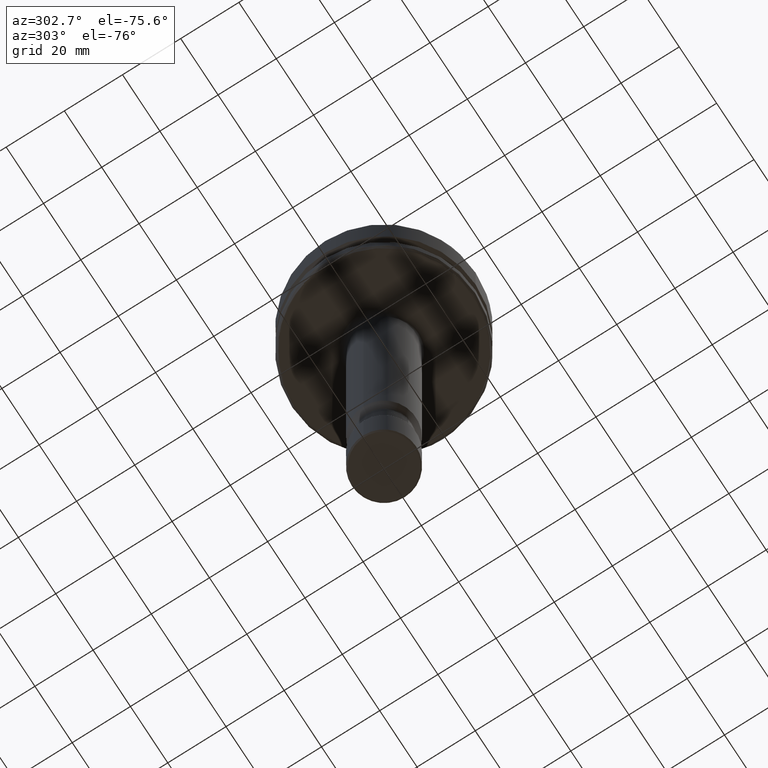
[diagram: clean part render]
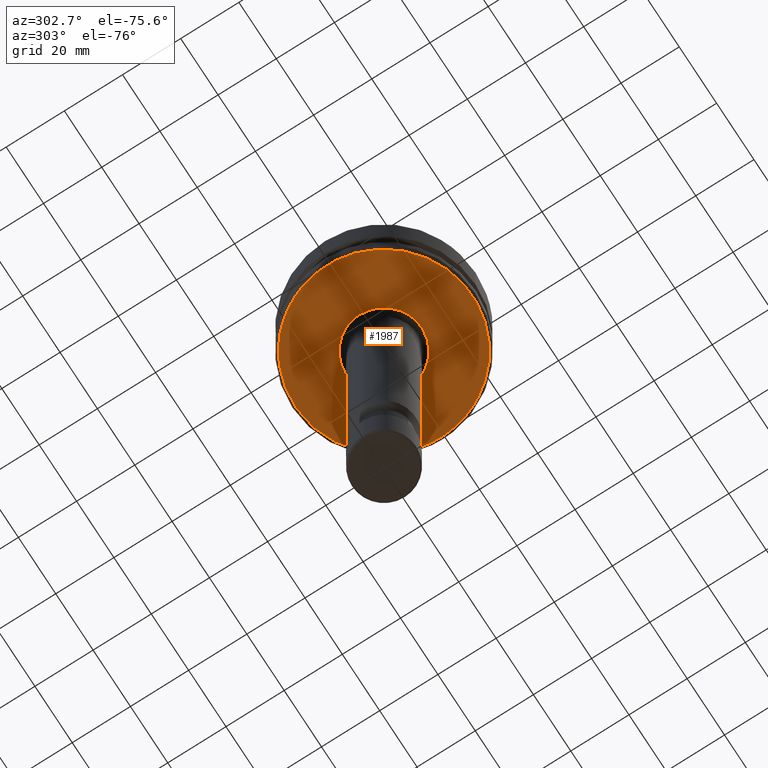
[diagram: same view with one face highlighted and labeled with its STEP entity id]
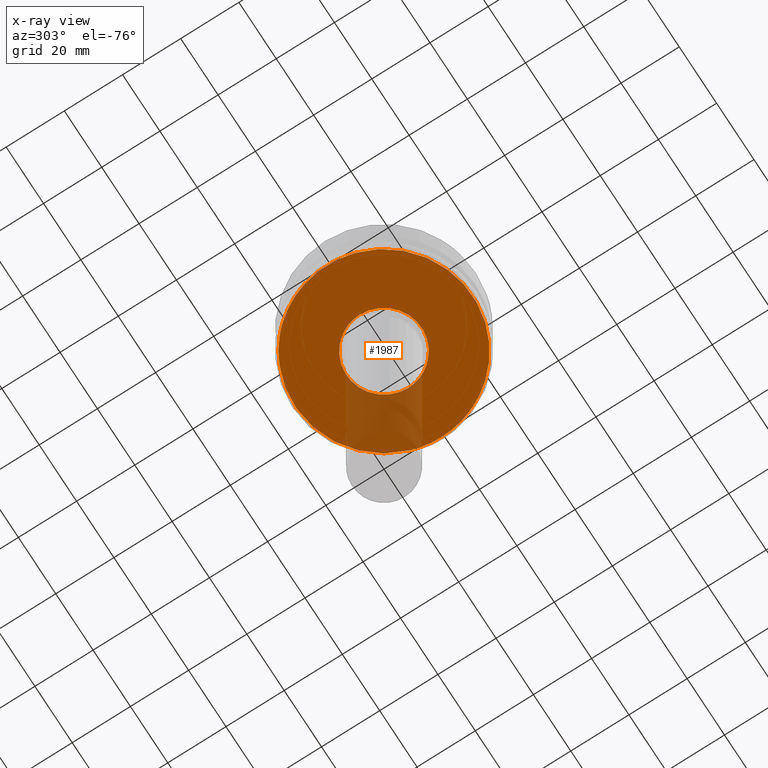
[diagram: x-ray of the same camera — body ghosted, the highlighted face saturated]
A machine part, auxiliary view. The second image highlights one B-rep face of the part: STEP entity #1987.
The next image is the same camera in x-ray: the body ghosted, the highlighted face saturated — about 17% of this face is hidden behind the body in this view.
In plain terms, the highlighted planar face has unit normal (0, 0, 1).
Its self-contained STEP definition (entity closure, byte-faithful):
#3 = CARTESIAN_POINT ( 'NONE',  ( -6.665848444535276600, 11.16589709546137700, -26.00000000000000700 ) ) ;
#4 = CARTESIAN_POINT ( 'NONE',  ( 8.224492792420258900, -10.06893843862769700, -25.99999999999999300 ) ) ;
#11 = CARTESIAN_POINT ( 'NONE',  ( -8.697391775621932600, -9.662360912527706300, -26.00000000000000000 ) ) ;
#12 = CARTESIAN_POINT ( 'NONE',  ( 12.99999999089697900, 0.0000000000000000000, -25.99999999980891700 ) ) ;
#17 = CARTESIAN_POINT ( 'NONE',  ( -8.891493379295289000, 9.494721174315442300, -25.99999999999999600 ) ) ;
#20 = CARTESIAN_POINT ( 'NONE',  ( -7.195771477466005100, -10.82978044247212400, -26.00000000000000400 ) ) ;
#22 = CARTESIAN_POINT ( 'NONE',  ( -11.60532393145673200, 5.858428464588204300, -26.00000000000000400 ) ) ;
#26 = CARTESIAN_POINT ( 'NONE',  ( -10.43088179008739900, -7.758662411335560400, -26.00000000000000400 ) ) ;
#28 = CARTESIAN_POINT ( 'NONE',  ( -12.47713946736913300, 3.649806099061836400, -26.00000000000000000 ) ) ;
#40 = CARTESIAN_POINT ( 'NONE',  ( 12.75842545335777700, 2.531925567999504100, -26.00000000000000000 ) ) ;
#43 = CARTESIAN_POINT ( 'NONE',  ( 10.15660783736210800, -8.115842816837044900, -26.00000000000000400 ) ) ;
#50 = CARTESIAN_POINT ( 'NONE',  ( 11.72055825528813800, 5.624002863866635100, -26.00000000000001100 ) ) ;
#51 = CARTESIAN_POINT ( 'NONE',  ( -3.456023284264532000, -12.53289178391835500, -26.00000000000000000 ) ) ;
#54 = CARTESIAN_POINT ( 'NONE',  ( 10.12643498733080500, 8.164783745410817400, -26.00000000000000000 ) ) ;
#57 = CARTESIAN_POINT ( 'NONE',  ( -2.677793518951932000, -12.72407675158668100, -25.99999999999999600 ) ) ;
#63 = CARTESIAN_POINT ( 'NONE',  ( 7.453726168854506900, 10.65109581368465900, -26.00000000000000700 ) ) ;
#68 = CARTESIAN_POINT ( 'NONE',  ( -5.889535757498517700, -11.59225926180178100, -26.00000000000001800 ) ) ;
#74 = ORIENTED_EDGE ( 'NONE', *, *, #1825, .F. ) ;
#76 = CARTESIAN_POINT ( 'NONE',  ( 4.462948443425572600, 12.21279276667721100, -26.00000000000001400 ) ) ;
#84 = CARTESIAN_POINT ( 'NONE',  ( -1.080315447793593200, 12.95575504323911700, -26.00000000000001100 ) ) ;
#107 = CARTESIAN_POINT ( 'NONE',  ( -29.26865843255823700, -8.700000007238630300, -26.00000000000725500 ) ) ;
#114 = CARTESIAN_POINT ( 'NONE',  ( 28.95262280004747200, -9.699999977622983500, -26.00000000000725500 ) ) ;
#131 = CARTESIAN_POINT ( 'NONE',  ( -29.61798612200000800, -30.90072634999999900, -26.00000000000000400 ) ) ;
#141 = EDGE_CURVE ( 'NONE', #1286, #2328, #2099, .T. ) ;
#146 = CARTESIAN_POINT ( 'NONE',  ( -12.84157813461084200, -2.049646468667113600, -26.00000000000000000 ) ) ;
#176 = CARTESIAN_POINT ( 'NONE',  ( 11.68034497071289300, -5.706983654730912300, -26.00000000000000400 ) ) ;
#183 = CARTESIAN_POINT ( 'NONE',  ( 12.84430868135151200, -2.008865610643468400, -26.00000000000001100 ) ) ;
#206 = ORIENTED_EDGE ( 'NONE', *, *, #1116, .F. ) ;
#211 = CARTESIAN_POINT ( 'NONE',  ( -4.275411031450400600, 12.27809760992258200, -26.00000000000001100 ) ) ;
#212 = CARTESIAN_POINT ( 'NONE',  ( 7.601288065153933200, -10.54890274067536600, -26.00000000000001100 ) ) ;
#218 = CARTESIAN_POINT ( 'NONE',  ( -7.220500655536326900, 10.81070013793212300, -25.99999999999999600 ) ) ;
#226 = CARTESIAN_POINT ( 'NONE',  ( -9.905587343606352800, 8.424549852082829900, -26.00000000000000700 ) ) ;
#229 = CARTESIAN_POINT ( 'NONE',  ( -12.20007224057808900, -4.516375954615981800, -26.00000000000000700 ) ) ;
#236 = CARTESIAN_POINT ( 'NONE',  ( -11.66269515217958200, 5.742967943403993300, -26.00000000000000400 ) ) ;
#243 = CARTESIAN_POINT ( 'NONE',  ( -8.844918225430358700, -9.528431390453011600, -26.00000000000001100 ) ) ;
#247 = CARTESIAN_POINT ( 'NONE',  ( -12.69080922528938200, 2.851566402173425700, -26.00000000000000700 ) ) ;
#255 = CARTESIAN_POINT ( 'NONE',  ( 12.55751909974897100, 3.364597966810259700, -25.99999999999999300 ) ) ;
#259 = CARTESIAN_POINT ( 'NONE',  ( 11.69548322186165600, 5.675895105862466000, -26.00000000000000000 ) ) ;
#267 = CARTESIAN_POINT ( 'NONE',  ( -4.089405059377071400, -12.34502885177416900, -26.00000000000000700 ) ) ;
#271 = CARTESIAN_POINT ( 'NONE',  ( 9.134210761469555400, 9.255262684222053300, -26.00000000000000400 ) ) ;
#278 = CARTESIAN_POINT ( 'NONE',  ( 5.307166560149932300, -11.87229994591063900, -26.00000000000001100 ) ) ;
#283 = CARTESIAN_POINT ( 'NONE',  ( 6.880437641091260700, 11.03496065661986400, -26.00000000000000700 ) ) ;
#286 = CARTESIAN_POINT ( 'NONE',  ( 5.715151094559951500, -11.67760638727562700, -26.00000000000000000 ) ) ;
#290 = CARTESIAN_POINT ( 'NONE',  ( 3.710139015612917000, 12.46004288468270900, -26.00000000000000400 ) ) ;
#297 = CARTESIAN_POINT ( 'NONE',  ( -1.485445144937151100, 12.91554627765314800, -26.00000000000000000 ) ) ;
#315 = B_SPLINE_CURVE_WITH_KNOTS ( 'NONE', 3,
 ( #667, #458, #874, #2296, #1090, #2513 ),
 .UNSPECIFIED., .F., .F.,
 ( 4, 2, 4 ),
 ( 0.0000000000000000000, 0.5000000000000002200, 1.000000000000000000 ),
 .UNSPECIFIED. ) ;
#338 = EDGE_CURVE ( 'NONE', #1863, #1044, #1966, .T. ) ;
#353 = CARTESIAN_POINT ( 'NONE',  ( -1.865717142217792700, 38.79191972775703300, -26.00000000001811200 ) ) ;
#377 = DIRECTION ( 'NONE',  ( -0.0000000000000000000, -0.0000000000000000000, 1.000000000000000000 ) ) ;
#384 = CARTESIAN_POINT ( 'NONE',  ( 7.037241332864589100, -10.93183333008880500, -26.00000000000000700 ) ) ;
#390 = CARTESIAN_POINT ( 'NONE',  ( -12.51941894402886200, -3.502433697865099800, -26.00000000000000400 ) ) ;
#399 = CARTESIAN_POINT ( 'NONE',  ( 12.06742314656597500, -4.859701828493509600, -25.99999999999999300 ) ) ;
#406 = CARTESIAN_POINT ( 'NONE',  ( 12.87528708114659200, -1.796572079088998300, -26.00000000000000700 ) ) ;
#420 = ORIENTED_EDGE ( 'NONE', *, *, #491, .T. ) ;
#432 = CARTESIAN_POINT ( 'NONE',  ( -4.585872313262745700, 12.16445983766305300, -26.00000000000000000 ) ) ;
#433 = CARTESIAN_POINT ( 'NONE',  ( 7.350413717816293200, -10.72251637540043300, -26.00000000000000400 ) ) ;
#440 = CARTESIAN_POINT ( 'NONE',  ( -7.350413717813416300, 10.72251637540228400, -26.00000000000000400 ) ) ;
#442 = CARTESIAN_POINT ( 'NONE',  ( 7.298518124950044600, -10.75790706068171300, -26.00000000000000400 ) ) ;
#446 = CARTESIAN_POINT ( 'NONE',  ( -11.50463699391471900, -6.067447743018442800, -26.00000000000001800 ) ) ;
#452 = ORIENTED_EDGE ( 'NONE', *, *, #141, .F. ) ;
#453 = CARTESIAN_POINT ( 'NONE',  ( -10.27925745968449100, 7.958813380902681100, -26.00000000000000000 ) ) ;
#458 = CARTESIAN_POINT ( 'NONE',  ( -24.48499757906505900, 18.37920005098452200, -25.99995802454618500 ) ) ;
#459 = CARTESIAN_POINT ( 'NONE',  ( -11.68034497071269800, 5.706983654731273800, -26.00000000000000700 ) ) ;
#463 = CARTESIAN_POINT ( 'NONE',  ( -10.45395731862819000, -7.727607292601403400, -26.00000000000001100 ) ) ;
#465 = CARTESIAN_POINT ( 'NONE',  ( -12.84430868135337200, 2.008865610630410400, -26.00000000000000000 ) ) ;
#466 = CARTESIAN_POINT ( 'NONE',  ( 12.98561946772936300, 0.7211141481754910200, -26.00000000000000000 ) ) ;
#474 = CARTESIAN_POINT ( 'NONE',  ( 12.49987432008627100, 3.571250527443399200, -26.00000000000000000 ) ) ;
#486 = CARTESIAN_POINT ( 'NONE',  ( 8.502185307315945900, -9.834313110178403200, -26.00000000000001100 ) ) ;
#487 = CARTESIAN_POINT ( 'NONE',  ( 11.50463699391030300, 6.067447743028909100, -26.00000000000000700 ) ) ;
#489 = CARTESIAN_POINT ( 'NONE',  ( 0.0000000000000000000, 0.0000000000000000000, -26.00000000000725500 ) ) ;
#490 = CARTESIAN_POINT ( 'NONE',  ( 4.275411031479545300, -12.27809760991351600, -26.00000000000000700 ) ) ;
#491 = EDGE_CURVE ( 'NONE', #1044, #1863, #519, .T. ) ;
#495 = CARTESIAN_POINT ( 'NONE',  ( 8.697391775617559200, 9.662360912531436700, -26.00000000000001400 ) ) ;
#498 = CARTESIAN_POINT ( 'NONE',  ( -4.462948443420872400, -12.21279276667904200, -26.00000000000000400 ) ) ;
#502 = CARTESIAN_POINT ( 'NONE',  ( 6.338240152826469600, 11.35035882657110100, -25.99999999999999600 ) ) ;
#508 = CIRCLE ( 'NONE', #2552, 30.53431457504351000 ) ;
#513 = CARTESIAN_POINT ( 'NONE',  ( 3.330143188888012000, 12.56694198950374300, -26.00000000000000400 ) ) ;
#519 = B_SPLINE_CURVE_WITH_KNOTS ( 'NONE', 3,
 ( #12, #647, #466, #1915, #680, #2118, #885, #2309, #1101, #2518, #1314, #40, #1510, #255, #1727, #474, #1921, #686, #2128, #893, #2314, #1111, #2527, #1322, #50, #1522, #259, #1732, #487, #1935, #691, #2136, #904, #2324, #1115, #2536, #1332, #54, #1531, #271, #1738, #495, #1947, #699, #2141, #913, #2335, #1124, #2544, #1344, #63, #1537, #283, #1748, #502, #1956, #712, #2149, #919, #2346, #1139, #2553, #1349, #76, #1548, #290, #1756, #513, #1963, #721, #2159, #927, #2351, #1149, #2562, #1356, #84, #1560, #297, #1764, #520, #1975, #727, #2166, #2673, #1476, #211, #1674, #432, #1878, #640, #2088, #844, #2272, #1059, #2482, #1278, #3, #1482, #218, #1688, #440, #1884, #652, #2097, #853, #2284, #1073, #2493, #1288, #17, #1493, #226, #1697, #453, #1892, #661, #2108, #865, #2289, #1084, #2505, #1294, #22, #1502, #236, #1705, #459, #1904, #670, #2114, #875, #2298, #1092, #2514, #1305, #28, #1506, #247, #1712, #465, #1913, #679, #2117, #884, #2307, #1098, #2517, #1312 ),
 .UNSPECIFIED., .F., .F.,
 ( 4, 1, 1, 1, 1, 1, 2, 2, 1, 1, 1, 1, 1, 2, 2, 1, 1, 1, 1, 1, 2, 2, 1, 1, 1, 1, 1, 2, 2, 1, 1, 1, 1, 2, 2, 1, 1, 2, 2, 1, 1, 2, 2, 1, 1, 2, 2, 1, 2, 2, 2, 2, 2, 1, 2, 2, 1, 2, 2, 1, 1, 2, 2, 1, 1, 2, 2, 1, 1, 1, 2, 2, 1, 1, 1, 2, 2, 1, 1, 1, 1, 1, 2, 2, 1, 1, 1, 1, 1, 2, 2, 1, 1, 1, 1, 1, 2, 2, 1, 1, 1, 1, 1, 2, 2, 4 ),
 ( 0.0000000000000000000, 0.03124999999999606600, 0.04687499999999410200, 0.05468749999999312400, 0.05859374999999262400, 0.06054687499999236700, 0.06152343749999223500, 0.06249999999999209700, 0.09374999999998726000, 0.1093749999999848700, 0.1171874999999837200, 0.1210937499999831100, 0.1230468749999828100, 0.1240234374999826700, 0.1249999999999825300, 0.1562499999999782100, 0.1718749999999760200, 0.1796874999999749600, 0.1835937499999744600, 0.1855468749999742200, 0.1865234374999741000, 0.1874999999999739900, 0.2187499999999702500, 0.2343749999999683600, 0.2421874999999673900, 0.2460937499999670000, 0.2480468749999668000, 0.2490234374999666700, 0.2499999999999665500, 0.2812499999999622500, 0.2968749999999601400, 0.3046874999999590300, 0.3085937499999585300, 0.3105468749999583700, 0.3124999999999581400, 0.3281249999999573700, 0.3359374999999569800, 0.3398437499999568100, 0.3437499999999566500, 0.3593749999999561500, 0.3671874999999558700, 0.3710937499999557600, 0.3749999999999556500, 0.3906249999999550900, 0.3984374999999548100, 0.4023437499999546500, 0.4062499999999545400, 0.4218749999999541500, 0.4296874999999539800, 0.4374999999999538700, 0.4531249999999535900, 0.4687499999999533700, 0.4999999999999528200, 0.5156249999999524800, 0.5234374999999523700, 0.5312499999999523700, 0.5468749999999520400, 0.5546874999999519300, 0.5624999999999518200, 0.5781249999999515900, 0.5859374999999515900, 0.5898437499999514800, 0.5937499999999514800, 0.6093749999999511500, 0.6171874999999510400, 0.6210937499999510400, 0.6249999999999509300, 0.6406249999999508200, 0.6484374999999507100, 0.6523437499999506000, 0.6542968749999506000, 0.6562499999999506000, 0.6718749999999507100, 0.6796874999999508200, 0.6835937499999509300, 0.6855468749999510400, 0.6874999999999510400, 0.7187499999999527000, 0.7343749999999535900, 0.7421874999999540400, 0.7460937499999543700, 0.7480468749999545900, 0.7490234374999547000, 0.7499999999999547000, 0.7812499999999598100, 0.7968749999999622500, 0.8046874999999634700, 0.8085937499999641400, 0.8105468749999644700, 0.8115234374999646900, 0.8124999999999649200, 0.8437499999999708000, 0.8593749999999736900, 0.8671874999999753500, 0.8710937499999761300, 0.8730468749999765700, 0.8740234374999768000, 0.8749999999999770200, 0.9062499999999830100, 0.9218749999999861200, 0.9296874999999875700, 0.9335937499999882300, 0.9355468749999886800, 0.9365234374999889000, 0.9374999999999891200, 1.000000000000000000 ),
 .UNSPECIFIED. ) ;
#520 = CARTESIAN_POINT ( 'NONE',  ( -2.282654054229410700, 12.80298102013411400, -26.00000000000001400 ) ) ;
#530 = CARTESIAN_POINT ( 'NONE',  ( -12.99999999179903800, 0.0000000000000000000, -25.99999999980891700 ) ) ;
#540 = AXIS2_PLACEMENT_3D ( 'NONE', #1831, #1985, #596 ) ;
#553 = EDGE_CURVE ( 'NONE', #2328, #2622, #508, .T. ) ;
#568 = ORIENTED_EDGE ( 'NONE', *, *, #338, .T. ) ;
#570 = CARTESIAN_POINT ( 'NONE',  ( -12.88631130143508800, -1.715539255690248000, -26.00000000000000000 ) ) ;
#596 = DIRECTION ( 'NONE',  ( 1.000000000000000000, 0.0000000000000000000, 0.0000000000000000000 ) ) ;
#601 = CARTESIAN_POINT ( 'NONE',  ( -12.91641316242654700, -1.474917749477568300, -26.00000000000000700 ) ) ;
#602 = CARTESIAN_POINT ( 'NONE',  ( 10.39226468881143400, -7.810312886852978300, -26.00000000000000000 ) ) ;
#606 = VERTEX_POINT ( 'NONE', #799 ) ;
#612 = CARTESIAN_POINT ( 'NONE',  ( 12.38640773827224400, -3.948675729609582200, -26.00000000000000700 ) ) ;
#624 = CARTESIAN_POINT ( 'NONE',  ( 12.88222849510384400, -1.745930955154457700, -26.00000000000000700 ) ) ;
#638 = VERTEX_POINT ( 'NONE', #1022 ) ;
#640 = CARTESIAN_POINT ( 'NONE',  ( -4.950408796803620800, 12.02333423223999800, -25.99999999999999600 ) ) ;
#645 = CARTESIAN_POINT ( 'NONE',  ( -8.633548972465042900, -9.719190386763992600, -25.99999999999999600 ) ) ;
#647 = CARTESIAN_POINT ( 'NONE',  ( 12.99999999870138000, 0.2888035334795979700, -26.00000000000000400 ) ) ;
#652 = CARTESIAN_POINT ( 'NONE',  ( -7.601288065154017600, 10.54890274067588500, -26.00000000000000700 ) ) ;
#656 = CARTESIAN_POINT ( 'NONE',  ( -11.69548322186110700, -5.675895105863681100, -26.00000000000001100 ) ) ;
#661 = CARTESIAN_POINT ( 'NONE',  ( -10.36568943339506400, 7.845550460220760400, -26.00000000000000400 ) ) ;
#664 = CARTESIAN_POINT ( 'NONE',  ( -8.590849952180374100, -9.756950282395484600, -26.00000000000001100 ) ) ;
#666 =( BOUNDED_CURVE ( )  B_SPLINE_CURVE ( 3, ( #2604, #1189, #353, #1809 ),
 .UNSPECIFIED., .F., .F. ) 
 B_SPLINE_CURVE_WITH_KNOTS ( ( 4, 4 ),
 ( 0.0000000000000000000, 1.000000000000000000 ),
 .UNSPECIFIED. ) 
 CURVE ( )  GEOMETRIC_REPRESENTATION_ITEM ( )  RATIONAL_B_SPLINE_CURVE ( ( 0.9678619356771636100, 0.6822568685370072900, 0.6834780745173547600, 0.9715255536182057000 ) ) 
 REPRESENTATION_ITEM ( '' )  );
#667 = CARTESIAN_POINT ( 'NONE',  ( -23.07677252762726300, 19.99999998806815400, -25.99997427848682800 ) ) ;
#670 = CARTESIAN_POINT ( 'NONE',  ( -12.06742314657682900, 4.859701828473483000, -26.00000000000000700 ) ) ;
#676 = CARTESIAN_POINT ( 'NONE',  ( -11.72055825528623700, -5.624002863870792600, -26.00000000000000700 ) ) ;
#679 = CARTESIAN_POINT ( 'NONE',  ( -12.87528708114710900, 1.796572079085387000, -26.00000000000000000 ) ) ;
#680 = CARTESIAN_POINT ( 'NONE',  ( 12.91641316242654700, 1.474917749477571400, -26.00000000000000000 ) ) ;
#686 = CARTESIAN_POINT ( 'NONE',  ( 12.48571370099731600, 3.620364510220221100, -26.00000000000000400 ) ) ;
#689 = CARTESIAN_POINT ( 'NONE',  ( 0.2706503575622613600, -13.00001144965394000, -26.00000000000000700 ) ) ;
#691 = CARTESIAN_POINT ( 'NONE',  ( 10.81884354557163200, 7.213103814465012100, -26.00000000000000000 ) ) ;
#694 = DIRECTION ( 'NONE',  ( 1.000000000000000000, 0.0000000000000000000, 0.0000000000000000000 ) ) ;
#699 = CARTESIAN_POINT ( 'NONE',  ( 8.590849952179066700, 9.756950282396598300, -26.00000000000000000 ) ) ;
#705 = CARTESIAN_POINT ( 'NONE',  ( -3.330143188894239000, -12.56694198950248200, -26.00000000000000000 ) ) ;
#712 = CARTESIAN_POINT ( 'NONE',  ( 6.174674883390193400, 11.44017047763208300, -26.00000000000000000 ) ) ;
#716 = CARTESIAN_POINT ( 'NONE',  ( 2.676893555059492300, -12.72213100144650100, -26.00000000000001100 ) ) ;
#717 = CARTESIAN_POINT ( 'NONE',  ( 10.36568943339436900, -7.845550460221511800, -26.00000000000001100 ) ) ;
#721 = CARTESIAN_POINT ( 'NONE',  ( 2.677793518970606800, 12.72407675158290300, -26.00000000000000000 ) ) ;
#727 = CARTESIAN_POINT ( 'NONE',  ( -2.938992396584935800, 12.66413642401171600, -25.99999999999999600 ) ) ;
#787 = CARTESIAN_POINT ( 'NONE',  ( -12.75842545335353500, -2.531925568031238700, -26.00000000000001100 ) ) ;
#799 = CARTESIAN_POINT ( 'NONE',  ( -23.07677252762726300, 19.99999998806815400, -25.99997427848682800 ) ) ;
#810 = CARTESIAN_POINT ( 'NONE',  ( 10.99385152463038500, -6.959556955832387500, -26.00000000000000700 ) ) ;
#818 = CARTESIAN_POINT ( 'NONE',  ( 12.45719893066842400, -3.717403324247965400, -26.00000000000000700 ) ) ;
#823 = CARTESIAN_POINT ( 'NONE',  ( 12.96165191610934300, -1.153169639203467800, -26.00000000000000400 ) ) ;
#844 = CARTESIAN_POINT ( 'NONE',  ( -5.715151094532540600, 11.67760638728848500, -26.00000000000000400 ) ) ;
#849 = CARTESIAN_POINT ( 'NONE',  ( -6.502418803565076300, -11.25816522744127300, -26.00000000000000700 ) ) ;
#853 = CARTESIAN_POINT ( 'NONE',  ( -8.224492792420370800, 10.06893843862837900, -26.00000000000000400 ) ) ;
#858 = CARTESIAN_POINT ( 'NONE',  ( -10.61308320390364000, -7.508767487030490400, -26.00000000000000400 ) ) ;
#865 = CARTESIAN_POINT ( 'NONE',  ( -10.39226468881143000, 7.810312886853012900, -26.00000000000001100 ) ) ;
#871 = CARTESIAN_POINT ( 'NONE',  ( -10.12643498734140800, -8.164783745401774000, -26.00000000000001100 ) ) ;
#874 = CARTESIAN_POINT ( 'NONE',  ( -25.73388010975312300, 16.58764383184959400, -25.99996615456248300 ) ) ;
#875 = CARTESIAN_POINT ( 'NONE',  ( -12.38640773827697200, 3.948675729600815000, -26.00000000000000000 ) ) ;
#880 = CARTESIAN_POINT ( 'NONE',  ( -11.95552234494732800, -5.111364362841228200, -26.00000000000000400 ) ) ;
#884 = CARTESIAN_POINT ( 'NONE',  ( -12.88222849510398600, 1.745930955153394100, -26.00000000000000000 ) ) ;
#885 = CARTESIAN_POINT ( 'NONE',  ( 12.89321332144435000, 1.663001688943835000, -25.99999999999999600 ) ) ;
#887 = CARTESIAN_POINT ( 'NONE',  ( 10.33986711470176600, -7.879629683363058100, -26.00000000000000700 ) ) ;
#893 = CARTESIAN_POINT ( 'NONE',  ( 12.37679890419741500, 3.993884172981500200, -26.00000000000001100 ) ) ;
#899 = CARTESIAN_POINT ( 'NONE',  ( -1.081591630377765100, -12.96625462852155800, -26.00000000000000700 ) ) ;
#904 = CARTESIAN_POINT ( 'NONE',  ( 10.50745695933916400, 7.654937638259522000, -26.00000000000000400 ) ) ;
#908 = CARTESIAN_POINT ( 'NONE',  ( 2.282654054270094600, -12.80298102012604000, -26.00000000000000700 ) ) ;
#913 = CARTESIAN_POINT ( 'NONE',  ( 8.365432207790970400, 9.953817627524435000, -26.00000000000000400 ) ) ;
#915 = CARTESIAN_POINT ( 'NONE',  ( -5.542425644910749400, -11.76431164439557800, -25.99999999999999600 ) ) ;
#919 = CARTESIAN_POINT ( 'NONE',  ( 5.542425644915615700, 11.76431164439368800, -26.00000000000000700 ) ) ;
#927 = CARTESIAN_POINT ( 'NONE',  ( 1.887219748770036200, 12.86512171157855100, -26.00000000000000700 ) ) ;
#987 = ORIENTED_EDGE ( 'NONE', *, *, #1258, .F. ) ;
#996 = CARTESIAN_POINT ( 'NONE',  ( 28.95262280004747200, -9.699999977622983500, -26.00000000000725500 ) ) ;
#1006 = AXIS2_PLACEMENT_3D ( 'NONE', #489, #1938, #694 ) ;
#1018 = CARTESIAN_POINT ( 'NONE',  ( -12.88734314376241700, -1.707762027623432900, -26.00000000000000700 ) ) ;
#1019 = CARTESIAN_POINT ( 'NONE',  ( 11.52343363686077300, -6.019103920770877600, -26.00000000000000400 ) ) ;
#1022 = CARTESIAN_POINT ( 'NONE',  ( -20.00000001829724300, 23.07258905792379600, -26.00000000000725500 ) ) ;
#1030 = CARTESIAN_POINT ( 'NONE',  ( 12.47352805051730900, -3.662131977600433500, -25.99999999999999600 ) ) ;
#1042 = CARTESIAN_POINT ( 'NONE',  ( 12.99999999089697900, 0.0000000000000000000, -25.99999999980891700 ) ) ;
#1044 = VERTEX_POINT ( 'NONE', #1634 ) ;
#1059 = CARTESIAN_POINT ( 'NONE',  ( -6.003236272597376000, 11.53105677036336700, -26.00000000000000400 ) ) ;
#1065 = CARTESIAN_POINT ( 'NONE',  ( -11.20839563911867700, -6.608482988774062200, -26.00000000000000700 ) ) ;
#1073 = CARTESIAN_POINT ( 'NONE',  ( -8.456233585657100700, 9.873852812964417000, -25.99999999999999600 ) ) ;
#1075 = CARTESIAN_POINT ( 'NONE',  ( 7.220500655545418300, -10.81070013792627400, -26.00000000000000700 ) ) ;
#1080 = CARTESIAN_POINT ( 'NONE',  ( -10.81884354557741700, -7.213103814451293300, -26.00000000000000700 ) ) ;
#1084 = CARTESIAN_POINT ( 'NONE',  ( -10.99385152463027300, 6.959556955830098700, -26.00000000000000700 ) ) ;
#1088 = CARTESIAN_POINT ( 'NONE',  ( -11.70553036415441300, -5.655144720377682800, -26.00000000000000000 ) ) ;
#1090 = CARTESIAN_POINT ( 'NONE',  ( -28.65980551082194300, 10.76045919722593800, -25.99998535039942000 ) ) ;
#1092 = CARTESIAN_POINT ( 'NONE',  ( -12.45719893066973000, 3.717403324245555800, -26.00000000000000700 ) ) ;
#1098 = CARTESIAN_POINT ( 'NONE',  ( -12.96165191610934100, 1.153169639201499000, -26.00000000000000000 ) ) ;
#1101 = CARTESIAN_POINT ( 'NONE',  ( 12.88734314376241700, 1.707762027623430000, -26.00000000000000400 ) ) ;
#1109 = VERTEX_POINT ( 'NONE', #1378 ) ;
#1111 = CARTESIAN_POINT ( 'NONE',  ( 11.95552234495908700, 5.111364362815433700, -26.00000000000000400 ) ) ;
#1113 = CARTESIAN_POINT ( 'NONE',  ( 3.456317958675544100, -12.53491474059694800, -26.00000000000000400 ) ) ;
#1115 = CARTESIAN_POINT ( 'NONE',  ( 10.43088179008686600, 7.758662411336843000, -26.00000000000002100 ) ) ;
#1116 = EDGE_CURVE ( 'NONE', #1109, #1286, #2285, .T. ) ;
#1118 = CARTESIAN_POINT ( 'NONE',  ( -29.27134713265137500, 8.701092613457747800, -25.99998957013613300 ) ) ;
#1119 = CARTESIAN_POINT ( 'NONE',  ( 4.585872313273154300, -12.16445983765981400, -26.00000000000000000 ) ) ;
#1124 = CARTESIAN_POINT ( 'NONE',  ( 7.747427429819024900, 10.44045914254711200, -26.00000000000000400 ) ) ;
#1125 = CIRCLE ( 'NONE', #2537, 30.53431457504351000 ) ;
#1132 = CARTESIAN_POINT ( 'NONE',  ( -4.949697201236690000, -12.02100990995611300, -26.00000000000000700 ) ) ;
#1139 = CARTESIAN_POINT ( 'NONE',  ( 4.949697201239036600, 12.02100990995519900, -26.00000000000000700 ) ) ;
#1149 = CARTESIAN_POINT ( 'NONE',  ( 0.5413007151107697100, 12.99997709787757700, -26.00000000000000400 ) ) ;
#1179 = CARTESIAN_POINT ( 'NONE',  ( -18.91750100332565100, -43.52350469451423000, -26.00000000001812200 ) ) ;
#1189 = CARTESIAN_POINT ( 'NONE',  ( 21.31510106570908600, 32.49652428871125000, -26.00000000001811900 ) ) ;
#1204 = CARTESIAN_POINT ( 'NONE',  ( -12.49987432008575700, -3.571250527447241000, -26.00000000000000400 ) ) ;
#1206 = CARTESIAN_POINT ( 'NONE',  ( 0.0000000000000000000, 0.0000000000000000000, -26.00000000000725500 ) ) ;
#1233 = CARTESIAN_POINT ( 'NONE',  ( -12.99999999870138500, -0.2888035334795991400, -26.00000000000000000 ) ) ;
#1235 = CARTESIAN_POINT ( 'NONE',  ( 11.64558621545735100, -5.777669313247114900, -26.00000000000000700 ) ) ;
#1244 = CARTESIAN_POINT ( 'NONE',  ( 12.57153700304493100, -3.326204821364046300, -26.00000000000001100 ) ) ;
#1258 = EDGE_CURVE ( 'NONE', #638, #606, #1125, .T. ) ;
#1278 = CARTESIAN_POINT ( 'NONE',  ( -6.339155838085137200, 11.35246154753641600, -26.00000000000000700 ) ) ;
#1282 = CARTESIAN_POINT ( 'NONE',  ( -12.48571370099715800, -3.620364510221340600, -26.00000000000000400 ) ) ;
#1286 = VERTEX_POINT ( 'NONE', #996 ) ;
#1288 = CARTESIAN_POINT ( 'NONE',  ( -8.526473443708706400, 9.813258008045584900, -26.00000000000000000 ) ) ;
#1292 = CARTESIAN_POINT ( 'NONE',  ( -8.085321213408018800, -10.18482946176548200, -26.00000000000000700 ) ) ;
#1294 = CARTESIAN_POINT ( 'NONE',  ( -11.52343363686071200, 6.019103920769890900, -26.00000000000001100 ) ) ;
#1301 = CARTESIAN_POINT ( 'NONE',  ( -10.41546541303966200, -7.779346041859946000, -26.00000000000000000 ) ) ;
#1305 = CARTESIAN_POINT ( 'NONE',  ( -12.47352805051768600, 3.662131977599722500, -26.00000000000000700 ) ) ;
#1312 = CARTESIAN_POINT ( 'NONE',  ( -12.99999999179903800, 0.0000000000000000000, -25.99999999980891700 ) ) ;
#1313 = ORIENTED_EDGE ( 'NONE', *, *, #2344, .F. ) ;
#1314 = CARTESIAN_POINT ( 'NONE',  ( 12.84157813461326800, 2.049646468648980600, -26.00000000000000000 ) ) ;
#1321 = CARTESIAN_POINT ( 'NONE',  ( 8.891493379289567400, -9.494721174321558300, -26.00000000000001400 ) ) ;
#1322 = CARTESIAN_POINT ( 'NONE',  ( 11.75532357844058700, 5.551224584068084100, -26.00000000000000000 ) ) ;
#1325 = CARTESIAN_POINT ( 'NONE',  ( -0.5413007151245199400, -12.99997709787586900, -26.00000000000000400 ) ) ;
#1329 = FACE_BOUND ( 'NONE', #2342, .T. ) ;
#1332 = CARTESIAN_POINT ( 'NONE',  ( 10.40854890557455000, 7.788600507375052800, -26.00000000000000700 ) ) ;
#1337 = CARTESIAN_POINT ( 'NONE',  ( 1.349659529681883000, -12.93045748915199200, -26.00000000000001100 ) ) ;
#1344 = CARTESIAN_POINT ( 'NONE',  ( 7.501582832037629000, 10.61743200645986100, -26.00000000000000400 ) ) ;
#1347 = CARTESIAN_POINT ( 'NONE',  ( 1.885140838068532200, -12.86540549636945700, -26.00000000000000700 ) ) ;
#1349 = CARTESIAN_POINT ( 'NONE',  ( 4.771055341385743300, 12.09302822233129900, -26.00000000000000000 ) ) ;
#1356 = CARTESIAN_POINT ( 'NONE',  ( -0.6759727560519055400, 12.98737412320099000, -26.00000000000001400 ) ) ;
#1378 = CARTESIAN_POINT ( 'NONE',  ( -29.26865843255823700, -8.700000007238630300, -26.00000000000725500 ) ) ;
#1387 = CARTESIAN_POINT ( 'NONE',  ( 17.40962795942964900, -44.15360565803842300, -26.00000000001812900 ) ) ;
#1405 = CARTESIAN_POINT ( 'NONE',  ( -12.62976304251173300, -3.088118217235496000, -26.00000000000000000 ) ) ;
#1416 = DIRECTION ( 'NONE',  ( 1.000000000000000000, 0.0000000000000000000, 0.0000000000000000000 ) ) ;
#1431 = CARTESIAN_POINT ( 'NONE',  ( 6.665848444556069700, -11.16589709544802200, -26.00000000000000000 ) ) ;
#1435 = DIRECTION ( 'NONE',  ( 1.000000000000000000, 0.0000000000000000000, 0.0000000000000000000 ) ) ;
#1449 = CARTESIAN_POINT ( 'NONE',  ( 11.67406859269453500, -5.719813629068343500, -26.00000000000000000 ) ) ;
#1455 = CARTESIAN_POINT ( 'NONE',  ( 12.79840190388690300, -2.290916689547067600, -26.00000000000000400 ) ) ;
#1464 = FACE_OUTER_BOUND ( 'NONE', #1781, .T. ) ;
#1476 = CARTESIAN_POINT ( 'NONE',  ( -3.837235673147261200, 12.42572343825292200, -26.00000000000000700 ) ) ;
#1482 = CARTESIAN_POINT ( 'NONE',  ( -7.037241332849002400, 10.93183333009881000, -26.00000000000000400 ) ) ;
#1487 = CARTESIAN_POINT ( 'NONE',  ( -9.134210761483474900, -9.255262684210164200, -26.00000000000000700 ) ) ;
#1493 = CARTESIAN_POINT ( 'NONE',  ( -9.380661359589520700, 9.020556576148425900, -26.00000000000000700 ) ) ;
#1498 = CARTESIAN_POINT ( 'NONE',  ( -7.747427429818299200, -10.44045914254763100, -26.00000000000001100 ) ) ;
#1502 = CARTESIAN_POINT ( 'NONE',  ( -11.64558621545733000, 5.777669313246833300, -26.00000000000000400 ) ) ;
#1503 = CARTESIAN_POINT ( 'NONE',  ( -10.50745695934096900, -7.654937638255241000, -26.00000000000000000 ) ) ;
#1506 = CARTESIAN_POINT ( 'NONE',  ( -12.57153700304735900, 3.326204821346991500, -26.00000000000000400 ) ) ;
#1510 = CARTESIAN_POINT ( 'NONE',  ( 12.62976304251494100, 3.088118217211707400, -26.00000000000001100 ) ) ;
#1518 = CIRCLE ( 'NONE', #1006, 30.53431457504351000 ) ;
#1522 = CARTESIAN_POINT ( 'NONE',  ( 11.70553036415551200, 5.655144720375280300, -26.00000000000000400 ) ) ;
#1531 = CARTESIAN_POINT ( 'NONE',  ( 9.689754379316145400, 8.687686623366536400, -26.00000000000000700 ) ) ;
#1535 = CARTESIAN_POINT ( 'NONE',  ( -2.939713621252539400, -12.66611601826542700, -26.00000000000000700 ) ) ;
#1537 = CARTESIAN_POINT ( 'NONE',  ( 7.195771477468482200, 10.82978044247040600, -26.00000000000000700 ) ) ;
#1541 = CARTESIAN_POINT ( 'NONE',  ( 5.888237425849314200, -11.59020481401870800, -25.99999999999999600 ) ) ;
#1548 = CARTESIAN_POINT ( 'NONE',  ( 4.089405059385294200, 12.34502885177096800, -26.00000000000000400 ) ) ;
#1560 = CARTESIAN_POINT ( 'NONE',  ( -1.349659529675866900, 12.93045748915124800, -26.00000000000001100 ) ) ;
#1623 = CARTESIAN_POINT ( 'NONE',  ( 0.0000000000000000000, 0.0000000000000000000, -26.00000000000725500 ) ) ;
#1631 = CARTESIAN_POINT ( 'NONE',  ( -12.98561946772936300, -0.7211141481754901300, -25.99999999999999600 ) ) ;
#1634 = CARTESIAN_POINT ( 'NONE',  ( 12.99999999089697900, 0.0000000000000000000, -25.99999999980891700 ) ) ;
#1639 = CARTESIAN_POINT ( 'NONE',  ( -12.49139207852070900, -3.600721803852795500, -26.00000000000000700 ) ) ;
#1643 = CARTESIAN_POINT ( 'NONE',  ( 11.84693842675658500, -5.365287079979524700, -26.00000000000000400 ) ) ;
#1653 = CARTESIAN_POINT ( 'NONE',  ( 12.86528967962474800, -1.867408515547795100, -26.00000000000000000 ) ) ;
#1674 = CARTESIAN_POINT ( 'NONE',  ( -4.461865761736086200, 12.21049311729793500, -25.99999999999999600 ) ) ;
#1688 = CARTESIAN_POINT ( 'NONE',  ( -7.298518124944569900, 10.75790706068522900, -26.00000000000000700 ) ) ;
#1697 = CARTESIAN_POINT ( 'NONE',  ( -10.15660783736649400, 8.115842816832346400, -26.00000000000000700 ) ) ;
#1702 = CARTESIAN_POINT ( 'NONE',  ( -7.501582832037367000, -10.61743200646003700, -26.00000000000000000 ) ) ;
#1703 = CARTESIAN_POINT ( 'NONE',  ( 28.95262279453796200, 9.699999994067793500, -26.00000000000725500 ) ) ;
#1705 = CARTESIAN_POINT ( 'NONE',  ( -11.67406859269453200, 5.719813629068261700, -26.00000000000000700 ) ) ;
#1707 = CARTESIAN_POINT ( 'NONE',  ( -11.82365520011060600, -5.405212232705840900, -26.00000000000000700 ) ) ;
#1712 = CARTESIAN_POINT ( 'NONE',  ( -12.79840190389009000, 2.290916689524687700, -26.00000000000000400 ) ) ;
#1713 = CARTESIAN_POINT ( 'NONE',  ( 9.905587343598846000, -8.424549852090860800, -26.00000000000000000 ) ) ;
#1727 = CARTESIAN_POINT ( 'NONE',  ( 12.51941894402986400, 3.502433697857670700, -26.00000000000000000 ) ) ;
#1732 = CARTESIAN_POINT ( 'NONE',  ( 11.69104189048933600, 5.685041134010623900, -26.00000000000000700 ) ) ;
#1734 = CARTESIAN_POINT ( 'NONE',  ( 1.080315447803045400, -12.95575504324029300, -26.00000000000000700 ) ) ;
#1738 = CARTESIAN_POINT ( 'NONE',  ( 8.844918225422249600, 9.528431390459932300, -26.00000000000000400 ) ) ;
#1744 = CARTESIAN_POINT ( 'NONE',  ( -2.150685866605107400, -12.82368764652112600, -26.00000000000001100 ) ) ;
#1748 = CARTESIAN_POINT ( 'NONE',  ( 6.502418803568337700, 11.25816522743901700, -26.00000000000000700 ) ) ;
#1756 = CARTESIAN_POINT ( 'NONE',  ( 3.456023284268642500, 12.53289178391675700, -26.00000000000000700 ) ) ;
#1764 = CARTESIAN_POINT ( 'NONE',  ( -1.885140838045286300, 12.86540549637407200, -26.00000000000000000 ) ) ;
#1781 = EDGE_LOOP ( 'NONE', ( #74, #987, #1944, #1798, #452, #206, #1313 ) ) ;
#1798 = ORIENTED_EDGE ( 'NONE', *, *, #553, .F. ) ;
#1809 = CARTESIAN_POINT ( 'NONE',  ( -20.00000001829724300, 23.07258905792379300, -26.00000000000725500 ) ) ;
#1825 = EDGE_CURVE ( 'NONE', #606, #2359, #315, .T. ) ;
#1829 = DIRECTION ( 'NONE',  ( 1.000000000000000000, 0.0000000000000000000, 0.0000000000000000000 ) ) ;
#1831 = CARTESIAN_POINT ( 'NONE',  ( 0.0000000000000000000, 0.0000000000000000000, -26.00000000000725500 ) ) ;
#1850 = CARTESIAN_POINT ( 'NONE',  ( -12.94367625239432900, -1.223910832321229300, -26.00000000000001100 ) ) ;
#1851 = CARTESIAN_POINT ( 'NONE',  ( 12.28644750941398000, -4.254851277693122200, -26.00000000000001100 ) ) ;
#1857 = CARTESIAN_POINT ( 'NONE',  ( 12.87946601802421900, -1.766190487268585400, -26.00000000000000400 ) ) ;
#1863 = VERTEX_POINT ( 'NONE', #530 ) ;
#1878 = CARTESIAN_POINT ( 'NONE',  ( -4.649190253041232300, 12.14039285594061100, -26.00000000000000400 ) ) ;
#1884 = CARTESIAN_POINT ( 'NONE',  ( -7.377241126255213100, 10.70407398928754500, -26.00000000000000400 ) ) ;
#1885 = CARTESIAN_POINT ( 'NONE',  ( 7.377241126255223800, -10.70407398928761100, -26.00000000000000400 ) ) ;
#1888 = CARTESIAN_POINT ( 'NONE',  ( -11.69104189048920300, -5.685041134010949000, -26.00000000000000700 ) ) ;
#1892 = CARTESIAN_POINT ( 'NONE',  ( -10.33986711470297400, 7.879629683361746300, -26.00000000000001100 ) ) ;
#1898 = CARTESIAN_POINT ( 'NONE',  ( -9.689754379334688700, -8.687686623350680600, -26.00000000000000400 ) ) ;
#1904 = CARTESIAN_POINT ( 'NONE',  ( -11.84693842676279000, 5.365287079968077000, -26.00000000000001100 ) ) ;
#1905 = CARTESIAN_POINT ( 'NONE',  ( 8.526473443709072300, -9.813258008045197700, -26.00000000000000400 ) ) ;
#1910 = CARTESIAN_POINT ( 'NONE',  ( -11.75532357843692000, -5.551224584076151400, -26.00000000000000400 ) ) ;
#1913 = CARTESIAN_POINT ( 'NONE',  ( -12.86528967962574300, 1.867408515540806700, -26.00000000000000400 ) ) ;
#1915 = CARTESIAN_POINT ( 'NONE',  ( 12.94367625239432200, 1.223910832321220400, -26.00000000000000700 ) ) ;
#1920 = CARTESIAN_POINT ( 'NONE',  ( 8.456233585657065200, -9.873852812964175400, -26.00000000000000400 ) ) ;
#1921 = CARTESIAN_POINT ( 'NONE',  ( 12.49139207852101500, 3.600721803850577300, -26.00000000000000400 ) ) ;
#1924 = CARTESIAN_POINT ( 'NONE',  ( -4.829874529110006700, -12.06964890547893400, -26.00000000000001400 ) ) ;
#1933 = CARTESIAN_POINT ( 'NONE',  ( 8.387114178819469900, -9.932909506988117700, -26.00000000000000000 ) ) ;
#1935 = CARTESIAN_POINT ( 'NONE',  ( 11.20839563911095700, 6.608482988792367500, -26.00000000000000000 ) ) ;
#1938 = DIRECTION ( 'NONE',  ( -0.0000000000000000000, -0.0000000000000000000, 1.000000000000000000 ) ) ;
#1940 = CARTESIAN_POINT ( 'NONE',  ( -6.174674883390896000, -11.44017047763181700, -26.00000000000000700 ) ) ;
#1941 = AXIS2_PLACEMENT_3D ( 'NONE', #131, #2631, #1435 ) ;
#1944 = ORIENTED_EDGE ( 'NONE', *, *, #1969, .F. ) ;
#1947 = CARTESIAN_POINT ( 'NONE',  ( 8.633548972462502700, 9.719190386766174000, -26.00000000000000400 ) ) ;
#1952 = CARTESIAN_POINT ( 'NONE',  ( 2.938992396605276000, -12.66413642400766400, -26.00000000000000000 ) ) ;
#1956 = CARTESIAN_POINT ( 'NONE',  ( 6.228305368439063900, 11.41105111429304100, -26.00000000000000400 ) ) ;
#1961 = CARTESIAN_POINT ( 'NONE',  ( -3.710139015606456900, -12.46004288468522400, -26.00000000000000700 ) ) ;
#1963 = CARTESIAN_POINT ( 'NONE',  ( 2.939713621264987700, 12.66611601826290300, -26.00000000000000400 ) ) ;
#1966 = B_SPLINE_CURVE_WITH_KNOTS ( 'NONE', 3,
 ( #2221, #1233, #1631, #1850, #601, #2069, #2405, #2633, #1018, #570, #146, #787, #1405, #2056, #390, #1204, #1639, #1282, #2488, #2116, #229, #880, #1707, #1910, #676, #1088, #656, #1888, #446, #1065, #1080, #858, #1503, #463, #26, #1301, #2103, #871, #1898, #1487, #243, #11, #645, #664, #2508, #2293, #1292, #1498, #2111, #1702, #2497, #20, #2092, #849, #2280, #2287, #1940, #68, #915, #2152, #1132, #1924, #2132, #498, #267, #1961, #51, #705, #1535, #57, #1744, #2143, #899, #1325, #689, #2318, #1734, #1337, #2139, #1347, #908, #716, #1952, #2547, #1113, #2329, #490, #2540, #1119, #2341, #2530, #278, #286, #1541, #2098, #2046, #2273, #1431, #384, #1075, #442, #433, #1885, #212, #2229, #4, #1933, #1920, #486, #1905, #1321, #2526, #1713, #43, #2475, #887, #717, #2203, #602, #2049, #810, #2236, #1019, #2449, #1235, #2643, #1449, #176, #1643, #399, #1851, #612, #2057, #818, #2247, #1030, #2455, #1244, #2654, #1455, #183, #1653, #406, #1857, #624, #2071, #823, #2253, #1042 ),
 .UNSPECIFIED., .F., .F.,
 ( 4, 1, 1, 1, 1, 1, 2, 2, 1, 1, 1, 1, 1, 2, 2, 1, 1, 1, 1, 1, 2, 2, 1, 1, 1, 1, 1, 2, 2, 1, 1, 1, 1, 2, 2, 1, 1, 2, 2, 1, 1, 2, 2, 1, 1, 2, 2, 1, 2, 2, 2, 2, 2, 1, 2, 2, 1, 2, 2, 1, 1, 2, 2, 1, 1, 2, 2, 1, 1, 1, 2, 2, 1, 1, 1, 2, 2, 1, 1, 1, 1, 1, 2, 2, 1, 1, 1, 1, 1, 2, 2, 1, 1, 1, 1, 1, 2, 2, 1, 1, 1, 1, 1, 2, 2, 4 ),
 ( 0.0000000000000000000, 0.03124999999999984000, 0.04687499999999975000, 0.05468749999999971600, 0.05859374999999968800, 0.06054687499999966700, 0.06152343749999965300, 0.06249999999999963200, 0.09374999999999895900, 0.1093749999999986300, 0.1171874999999984600, 0.1210937499999983600, 0.1230468749999983100, 0.1240234374999982700, 0.1249999999999982400, 0.1562499999999977800, 0.1718749999999975900, 0.1796874999999975000, 0.1835937499999974500, 0.1855468749999973900, 0.1865234374999974200, 0.1874999999999974500, 0.2187499999999981100, 0.2343749999999984500, 0.2421874999999985800, 0.2460937499999986700, 0.2480468749999986100, 0.2490234374999986100, 0.2499999999999986100, 0.2812499999999987800, 0.2968749999999988300, 0.3046874999999988300, 0.3085937499999988300, 0.3105468749999987800, 0.3124999999999987800, 0.3281249999999991100, 0.3359374999999992200, 0.3398437499999993300, 0.3437499999999993900, 0.3593749999999996100, 0.3671874999999996700, 0.3710937499999996700, 0.3749999999999996100, 0.3906249999999994400, 0.3984374999999993300, 0.4023437499999992800, 0.4062499999999992200, 0.4218749999999988900, 0.4296874999999987800, 0.4374999999999987200, 0.4531249999999984500, 0.4687499999999982200, 0.4999999999999977800, 0.5156249999999975600, 0.5234374999999974500, 0.5312499999999973400, 0.5468749999999971100, 0.5546874999999970000, 0.5624999999999970000, 0.5781249999999967800, 0.5859374999999966700, 0.5898437499999966700, 0.5937499999999966700, 0.6093749999999964500, 0.6171874999999964500, 0.6210937499999963400, 0.6249999999999963400, 0.6406249999999965600, 0.6484374999999965600, 0.6523437499999965600, 0.6542968749999965600, 0.6562499999999965600, 0.6718749999999966700, 0.6796874999999968900, 0.6835937499999970000, 0.6855468749999970000, 0.6874999999999971100, 0.7187499999999985600, 0.7343749999999992200, 0.7421874999999995600, 0.7460937499999996700, 0.7480468749999997800, 0.7490234374999997800, 0.7499999999999996700, 0.7812499999999970000, 0.7968749999999955600, 0.8046874999999948900, 0.8085937499999945600, 0.8105468749999944500, 0.8115234374999944500, 0.8124999999999944500, 0.8437499999999942300, 0.8593749999999941200, 0.8671874999999941200, 0.8710937499999941200, 0.8730468749999941200, 0.8740234374999941200, 0.8749999999999941200, 0.9062499999999956700, 0.9218749999999965600, 0.9296874999999968900, 0.9335937499999971100, 0.9355468749999972200, 0.9365234374999973400, 0.9374999999999974500, 1.000000000000000000 ),
 .UNSPECIFIED. ) ;
#1969 = EDGE_CURVE ( 'NONE', #2622, #638, #666, .T. ) ;
#1975 = CARTESIAN_POINT ( 'NONE',  ( -2.676893555027528100, 12.72213100145285800, -26.00000000000000700 ) ) ;
#1985 = DIRECTION ( 'NONE',  ( -0.0000000000000000000, -0.0000000000000000000, 1.000000000000000000 ) ) ;
#1987 = ADVANCED_FACE ( 'NONE', ( #1329, #1464 ), #2431, .F. ) ;
#2046 = CARTESIAN_POINT ( 'NONE',  ( 6.062269863241265700, -11.50011990620005900, -26.00000000000000400 ) ) ;
#2049 = CARTESIAN_POINT ( 'NONE',  ( 10.64752992375079700, -7.469987602117467600, -26.00000000000000700 ) ) ;
#2056 = CARTESIAN_POINT ( 'NONE',  ( -12.55751909974710600, -3.364597966824148600, -26.00000000000000000 ) ) ;
#2057 = CARTESIAN_POINT ( 'NONE',  ( 12.43399986455993100, -3.794650387396974400, -26.00000000000000700 ) ) ;
#2069 = CARTESIAN_POINT ( 'NONE',  ( -12.90120874686759400, -1.600323351826596000, -26.00000000000000000 ) ) ;
#2071 = CARTESIAN_POINT ( 'NONE',  ( 12.88375737334426900, -1.734608936650267100, -26.00000000000001100 ) ) ;
#2088 = CARTESIAN_POINT ( 'NONE',  ( -5.307166560113399700, 11.87229994592779800, -26.00000000000001400 ) ) ;
#2092 = CARTESIAN_POINT ( 'NONE',  ( -6.880437641086916600, -11.03496065662286400, -26.00000000000000000 ) ) ;
#2097 = CARTESIAN_POINT ( 'NONE',  ( -7.893878937842584900, 10.33391621757596800, -26.00000000000000000 ) ) ;
#2098 = CARTESIAN_POINT ( 'NONE',  ( 6.003236272607162000, -11.53105677035876100, -26.00000000000000000 ) ) ;
#2099 = CIRCLE ( 'NONE', #540, 30.53431457504351000 ) ;
#2103 = CARTESIAN_POINT ( 'NONE',  ( -10.40854890557422200, -7.788600507375343300, -26.00000000000000000 ) ) ;
#2108 = CARTESIAN_POINT ( 'NONE',  ( -10.38287025746881800, 7.822799121956475900, -26.00000000000000700 ) ) ;
#2111 = CARTESIAN_POINT ( 'NONE',  ( -7.600237746106224700, -10.54703955020456300, -26.00000000000000400 ) ) ;
#2114 = CARTESIAN_POINT ( 'NONE',  ( -12.28644750942210900, 4.254851277678090700, -26.00000000000000400 ) ) ;
#2116 = CARTESIAN_POINT ( 'NONE',  ( -12.37679890418845300, -3.993884173001150300, -26.00000000000000400 ) ) ;
#2117 = CARTESIAN_POINT ( 'NONE',  ( -12.87946601802451400, 1.766190487266490600, -25.99999999999999600 ) ) ;
#2118 = CARTESIAN_POINT ( 'NONE',  ( 12.90120874686758000, 1.600323351826590900, -26.00000000000000000 ) ) ;
#2128 = CARTESIAN_POINT ( 'NONE',  ( 12.48322503295820800, 3.628941119323267500, -26.00000000000001100 ) ) ;
#2132 = CARTESIAN_POINT ( 'NONE',  ( -4.771055341386921000, -12.09302822233084200, -26.00000000000000400 ) ) ;
#2136 = CARTESIAN_POINT ( 'NONE',  ( 10.61308320390026300, 7.508767487038508800, -26.00000000000000700 ) ) ;
#2139 = CARTESIAN_POINT ( 'NONE',  ( 1.485445144925528100, -12.91554627765545900, -26.00000000000000700 ) ) ;
#2141 = CARTESIAN_POINT ( 'NONE',  ( 8.570759329229886700, 9.774608412202109500, -25.99999999999999600 ) ) ;
#2143 = CARTESIAN_POINT ( 'NONE',  ( -1.887219748770908400, -12.86512171157940500, -26.00000000000000400 ) ) ;
#2149 = CARTESIAN_POINT ( 'NONE',  ( 5.889535757501297700, 11.59225926180069300, -26.00000000000001800 ) ) ;
#2152 = CARTESIAN_POINT ( 'NONE',  ( -5.128813314237095100, -11.94674464687061800, -26.00000000000000400 ) ) ;
#2159 = CARTESIAN_POINT ( 'NONE',  ( 2.150685866623786200, 12.82368764651734600, -26.00000000000000700 ) ) ;
#2166 = CARTESIAN_POINT ( 'NONE',  ( -3.071841020193841800, 12.63254262833327600, -26.00000000000000400 ) ) ;
#2203 = CARTESIAN_POINT ( 'NONE',  ( 10.38287025746846700, -7.822799121956854200, -26.00000000000000700 ) ) ;
#2221 = CARTESIAN_POINT ( 'NONE',  ( -12.99999999179903800, 0.0000000000000000000, -25.99999999980891700 ) ) ;
#2229 = CARTESIAN_POINT ( 'NONE',  ( 7.893878937842453400, -10.33391621757504100, -26.00000000000001400 ) ) ;
#2236 = CARTESIAN_POINT ( 'NONE',  ( 11.35419014128958000, -6.337083447130680700, -26.00000000000000700 ) ) ;
#2247 = CARTESIAN_POINT ( 'NONE',  ( 12.46701345963590400, -3.684247213174953700, -26.00000000000000400 ) ) ;
#2253 = CARTESIAN_POINT ( 'NONE',  ( 12.99999999870137700, -0.5779484003069593800, -25.99999999999999300 ) ) ;
#2272 = CARTESIAN_POINT ( 'NONE',  ( -5.888237425831697200, 11.59020481402699300, -26.00000000000000400 ) ) ;
#2273 = CARTESIAN_POINT ( 'NONE',  ( 6.339155838097015700, -11.35246154752878300, -25.99999999999999600 ) ) ;
#2280 = CARTESIAN_POINT ( 'NONE',  ( -6.338240152824385900, -11.35035882657255600, -26.00000000000000000 ) ) ;
#2284 = CARTESIAN_POINT ( 'NONE',  ( -8.387114178819537400, 9.932909506988531600, -25.99999999999999600 ) ) ;
#2285 =( BOUNDED_CURVE ( )  B_SPLINE_CURVE ( 3, ( #107, #1179, #1387, #114 ),
 .UNSPECIFIED., .F., .T. ) 
 B_SPLINE_CURVE_WITH_KNOTS ( ( 4, 4 ),
 ( 0.0000000000000000000, 1.000000000000000000 ),
 .UNSPECIFIED. ) 
 CURVE ( )  GEOMETRIC_REPRESENTATION_ITEM ( )  RATIONAL_B_SPLINE_CURVE ( ( 0.9619637142093425700, 0.5138822545309558200, 0.5137910265579069800, 0.9616900302901961700 ) ) 
 REPRESENTATION_ITEM ( '' )  );
#2287 = CARTESIAN_POINT ( 'NONE',  ( -6.228305368437911000, -11.41105111429385800, -26.00000000000000700 ) ) ;
#2289 = CARTESIAN_POINT ( 'NONE',  ( -10.64752992375073300, 7.469987602116165500, -26.00000000000000700 ) ) ;
#2293 = CARTESIAN_POINT ( 'NONE',  ( -8.365432207790416200, -9.953817627524825800, -26.00000000000000700 ) ) ;
#2296 = CARTESIAN_POINT ( 'NONE',  ( -27.82155158467385200, 12.77779247162599300, -25.99997981748908100 ) ) ;
#2298 = CARTESIAN_POINT ( 'NONE',  ( -12.43399986456246400, 3.794650387392271500, -26.00000000000000400 ) ) ;
#2307 = CARTESIAN_POINT ( 'NONE',  ( -12.88375737334426300, 1.734608936650294100, -26.00000000000000400 ) ) ;
#2309 = CARTESIAN_POINT ( 'NONE',  ( 12.88970244962501300, 1.689858591124654600, -25.99999999999999600 ) ) ;
#2314 = CARTESIAN_POINT ( 'NONE',  ( 12.20007224059376900, 4.516375954581591600, -26.00000000000000400 ) ) ;
#2318 = CARTESIAN_POINT ( 'NONE',  ( 0.6759727560639389200, -12.98737412320248400, -25.99999999999999600 ) ) ;
#2324 = CARTESIAN_POINT ( 'NONE',  ( 10.45395731862725500, 7.727607292603614100, -26.00000000000000400 ) ) ;
#2328 = VERTEX_POINT ( 'NONE', #2520 ) ;
#2329 = CARTESIAN_POINT ( 'NONE',  ( 3.837235673186106600, -12.42572343824084600, -26.00000000000000000 ) ) ;
#2335 = CARTESIAN_POINT ( 'NONE',  ( 8.085321213408992200, 10.18482946176480300, -26.00000000000000400 ) ) ;
#2341 = CARTESIAN_POINT ( 'NONE',  ( 4.649190253036011600, -12.14039285594305200, -26.00000000000000400 ) ) ;
#2342 = EDGE_LOOP ( 'NONE', ( #568, #420 ) ) ;
#2344 = EDGE_CURVE ( 'NONE', #2359, #1109, #1518, .T. ) ;
#2346 = CARTESIAN_POINT ( 'NONE',  ( 5.128813314240749000, 11.94674464686919200, -26.00000000000000700 ) ) ;
#2351 = CARTESIAN_POINT ( 'NONE',  ( 1.081591630379518100, 12.96625462852326500, -26.00000000000000700 ) ) ;
#2359 = VERTEX_POINT ( 'NONE', #1118 ) ;
#2405 = CARTESIAN_POINT ( 'NONE',  ( -12.89321332144434400, -1.663001688943839000, -26.00000000000000400 ) ) ;
#2431 = PLANE ( 'NONE',  #1941 ) ;
#2449 = CARTESIAN_POINT ( 'NONE',  ( 11.60532393145674800, -5.858428464588738100, -26.00000000000000400 ) ) ;
#2455 = CARTESIAN_POINT ( 'NONE',  ( 12.47713946736922000, -3.649806099061307500, -26.00000000000000400 ) ) ;
#2475 = CARTESIAN_POINT ( 'NONE',  ( 10.27925745968213700, -7.958813380905205300, -26.00000000000000400 ) ) ;
#2482 = CARTESIAN_POINT ( 'NONE',  ( -6.062269863244233100, 11.50011990619815100, -26.00000000000000400 ) ) ;
#2488 = CARTESIAN_POINT ( 'NONE',  ( -12.48322503295847400, -3.628941119322648800, -26.00000000000000000 ) ) ;
#2493 = CARTESIAN_POINT ( 'NONE',  ( -8.502185307315965400, 9.834313110178534600, -26.00000000000000700 ) ) ;
#2497 = CARTESIAN_POINT ( 'NONE',  ( -7.453726168855126000, -10.65109581368422600, -26.00000000000000400 ) ) ;
#2505 = CARTESIAN_POINT ( 'NONE',  ( -11.35419014128950400, 6.337083447128963900, -26.00000000000000400 ) ) ;
#2508 = CARTESIAN_POINT ( 'NONE',  ( -8.570759329229963100, -9.774608412202063300, -26.00000000000000700 ) ) ;
#2513 = CARTESIAN_POINT ( 'NONE',  ( -29.27134713265137500, 8.701092613457747800, -25.99998957013613300 ) ) ;
#2514 = CARTESIAN_POINT ( 'NONE',  ( -12.46701345963665600, 3.684247213173548200, -25.99999999999999600 ) ) ;
#2517 = CARTESIAN_POINT ( 'NONE',  ( -12.99999999870137700, 0.5779484003049909500, -26.00000000000000000 ) ) ;
#2518 = CARTESIAN_POINT ( 'NONE',  ( 12.88631130143500900, 1.715539255690810700, -26.00000000000000400 ) ) ;
#2520 = CARTESIAN_POINT ( 'NONE',  ( 30.53431457504351300, 0.0000000000000000000, -26.00000000000725500 ) ) ;
#2526 = CARTESIAN_POINT ( 'NONE',  ( 9.380661359579514500, -9.020556576159133800, -26.00000000000000000 ) ) ;
#2527 = CARTESIAN_POINT ( 'NONE',  ( 11.82365520011747000, 5.405212232690806800, -26.00000000000000400 ) ) ;
#2530 = CARTESIAN_POINT ( 'NONE',  ( 4.950408796824504500, -12.02333423223019300, -26.00000000000001400 ) ) ;
#2536 = CARTESIAN_POINT ( 'NONE',  ( 10.41546541303938700, 7.779346041860591800, -26.00000000000000000 ) ) ;
#2537 = AXIS2_PLACEMENT_3D ( 'NONE', #1623, #377, #1829 ) ;
#2540 = CARTESIAN_POINT ( 'NONE',  ( 4.461865761754823200, -12.21049311729211500, -26.00000000000000700 ) ) ;
#2544 = CARTESIAN_POINT ( 'NONE',  ( 7.600237746106694600, 10.54703955020423400, -26.00000000000000400 ) ) ;
#2547 = CARTESIAN_POINT ( 'NONE',  ( 3.071841020182746200, -12.63254262833672200, -26.00000000000000000 ) ) ;
#2552 = AXIS2_PLACEMENT_3D ( 'NONE', #1206, #2620, #1416 ) ;
#2553 = CARTESIAN_POINT ( 'NONE',  ( 4.829874529111308800, 12.06964890547841500, -26.00000000000000700 ) ) ;
#2562 = CARTESIAN_POINT ( 'NONE',  ( -0.2706503575553852500, 13.00001144965308500, -26.00000000000000000 ) ) ;
#2604 = CARTESIAN_POINT ( 'NONE',  ( 28.95262279453796200, 9.699999994067793500, -26.00000000000725500 ) ) ;
#2620 = DIRECTION ( 'NONE',  ( -0.0000000000000000000, -0.0000000000000000000, 1.000000000000000000 ) ) ;
#2622 = VERTEX_POINT ( 'NONE', #1703 ) ;
#2631 = DIRECTION ( 'NONE',  ( 0.0000000000000000000, 0.0000000000000000000, 1.000000000000000000 ) ) ;
#2633 = CARTESIAN_POINT ( 'NONE',  ( -12.88970244962501300, -1.689858591124659100, -26.00000000000001400 ) ) ;
#2643 = CARTESIAN_POINT ( 'NONE',  ( 11.66269515217958700, -5.742967943404155000, -26.00000000000000400 ) ) ;
#2654 = CARTESIAN_POINT ( 'NONE',  ( 12.69080922528511700, -2.851566402203265000, -25.99999999999999300 ) ) ;
#2673 = CARTESIAN_POINT ( 'NONE',  ( -3.456317958653339200, 12.53491474060384700, -26.00000000000000700 ) ) ;